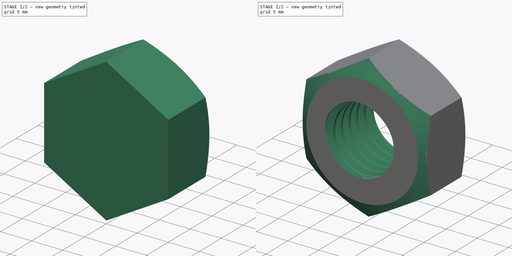
[diagram: build sequence overview — one tinted view per stage of 2, left to right]
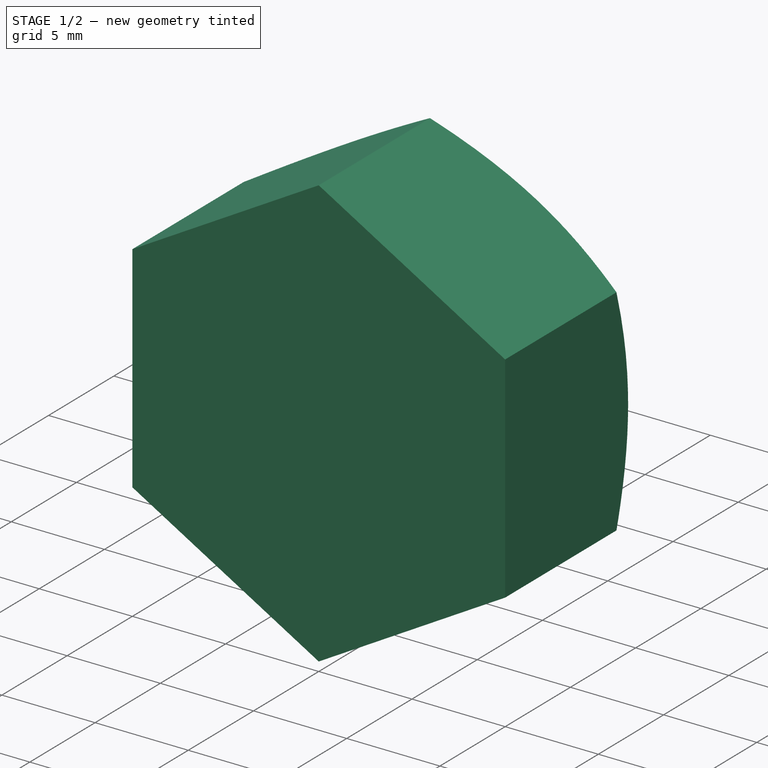
[diagram: stage 1 of 2 — iso view after this stage's code; geometry added in this stage tinted green]
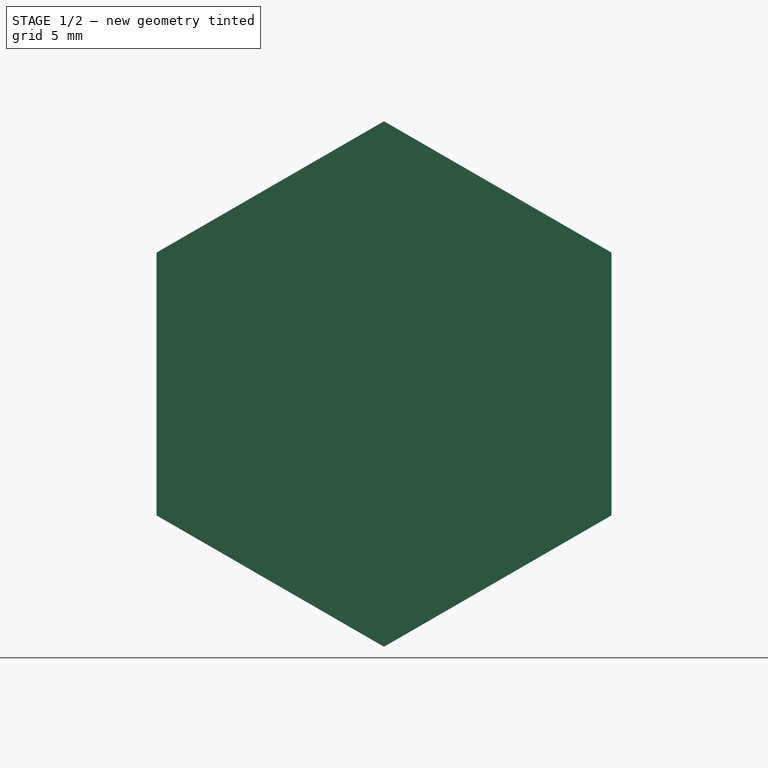
[diagram: stage 1 of 2 — front view after this stage's code; geometry added in this stage tinted green]
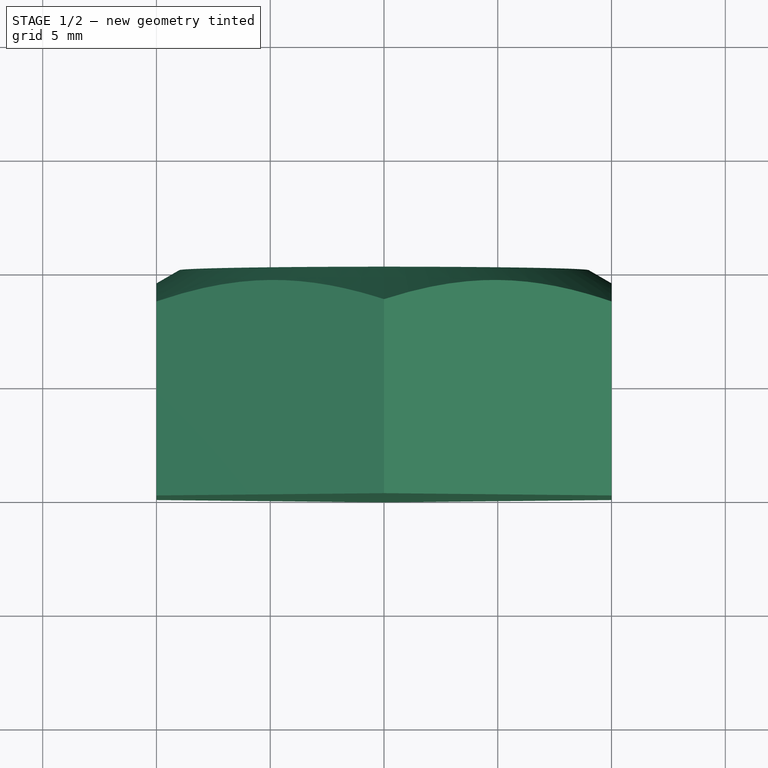
[diagram: stage 1 of 2 — top view after this stage's code; geometry added in this stage tinted green]
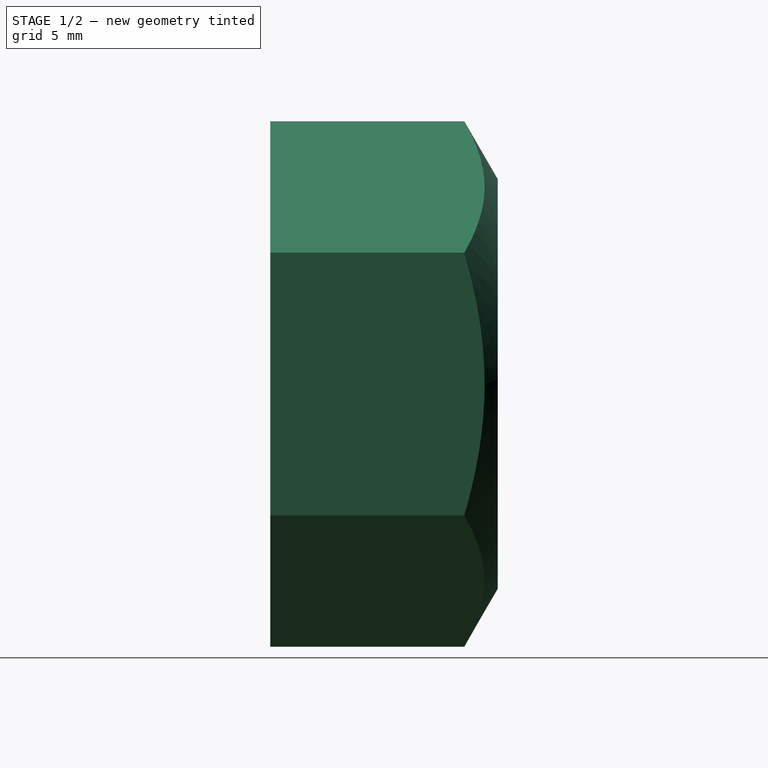
[diagram: stage 1 of 2 — right view after this stage's code; geometry added in this stage tinted green]
FCSTD DOCUMENT  (FreeCAD 0.20R29603 (Git))
Label: f2b_mutter
License: All rights reserved
LicenseURL: http://en.wikipedia.org/wiki/All_rights_reserved
objects: Sketcher::SketchObject×3, PartDesign::Pad×1, PartDesign::Groove×1, PartDesign::Mirrored×1, PartDesign::Hole×1, PartDesign::Body×1
note: 11 computed .brp shape members not serialized (recipe doc carries the construction recipe); baked Part::Feature solids carry a one-line shape summary decoded from their .brp

FEATURE [Sketcher::SketchObject] Sketch  label="sk_sechskant"
  FullyConstrained = true
  MapMode = 5
  Placement = pos=(0,0,0) rot=(1,0,0;1.5708rad)
  Support = -> [XZ_Plane]
  sketch-geometry (7):
    g0: LineSegment StartX=-10 StartY=-5.7735 StartZ=0 EndX=-10 EndY=5.7735 EndZ=0
    g1: LineSegment StartX=-10 StartY=5.7735 StartZ=0 EndX=0 EndY=11.547 EndZ=0
    g2: LineSegment StartX=0 StartY=11.547 StartZ=0 EndX=10 EndY=5.7735 EndZ=0
    g3: LineSegment StartX=10 StartY=5.7735 StartZ=0 EndX=10 EndY=-5.7735 EndZ=0
    g4: LineSegment StartX=10 StartY=-5.7735 StartZ=0 EndX=0 EndY=-11.547 EndZ=0
    g5: LineSegment StartX=0 StartY=-11.547 StartZ=0 EndX=-10 EndY=-5.7735 EndZ=0
    g6: Circle CenterX=0 CenterY=0 CenterZ=0 NormalX=0 NormalY=0 NormalZ=1 AngleXU=0 Radius=10
  constraints (20):
    c: Vertical(g0)
    c: Coincident(g1,g0)
    c: Coincident(g3,g2)
    c: Vertical(g3)
    c: Coincident(g5,g0)
    c: Equal(g0,g1)
    c: Equal(g1,g2)
    c: Equal(g2,g3)
    c: Equal(g3,g4)
    c: Equal(g4,g5)
    c: Coincident(g4,g3)
    c: Coincident(g4,g5)
    c: Coincident(g2,g1)
    c: Vertical(g1,g4)
    c: Vertical(g1,g-1)
    c: Distance(g0,g3) = 20
    c: Angle(g1,g2) = 2.0944
    c: Coincident(g6,g-1)
    c: Tangent(g6,g0)
    c: Tangent(g6,g1)
FEATURE [PartDesign::Pad] Pad  label="pad_sechskant"
  Direction = (0,-1,-2e-16)
  Length = 10
  Length2 = 10
  Midplane = true
  Placement = pos=(0,0,0) rot=(1,0,0;1.5708rad)
  Profile = -> Sketch
  ReferenceAxis = -> Sketch [N_Axis]
  Type = 0
  expr: Length = <<sk_fase>>.Constraints.dim_abstand * 2
FEATURE [Sketcher::SketchObject] Sketch001  label="sk_fase"
  FullyConstrained = true
  MapMode = 5
  Placement = pos=(0,0,0) rot=(0.57735,0.57735,0.57735;2.0944rad)
  Support = -> [YZ_Plane]
  sketch-geometry (3):
    g0: LineSegment StartX=2.6906 StartY=13 StartZ=0 EndX=5 EndY=9 EndZ=0
    g1: LineSegment StartX=5 StartY=9 StartZ=0 EndX=5 EndY=13 EndZ=0
    g2: LineSegment StartX=5 StartY=13 StartZ=0 EndX=2.6906 EndY=13 EndZ=0
  constraints (9):
    c: Coincident(g1,g0)
    c: Coincident(g2,g0)
    c: Horizontal(g2)
    c: Vertical(g1)
    c: Coincident(g2,g1)
    c: Distance(g0,g-1) = 9
    c: Angle(g1,g0) = 0.523599
    c: Distance(g1,g-1) = 13
    c: DistanceX(g-1,g0) = 5  'dim_abstand'
FEATURE [PartDesign::Groove] Groove  label="rev_fase"
  Angle = 360
  Axis = (1e-16,1,-1e-16)
  Base = (0,0,0)
  BaseFeature = -> Pad
  Placement = pos=(0,0,0) rot=(1,0,0;1.5708rad)
  Profile = -> Sketch001
  ReferenceAxis = -> Y_Axis
  Reversed = true
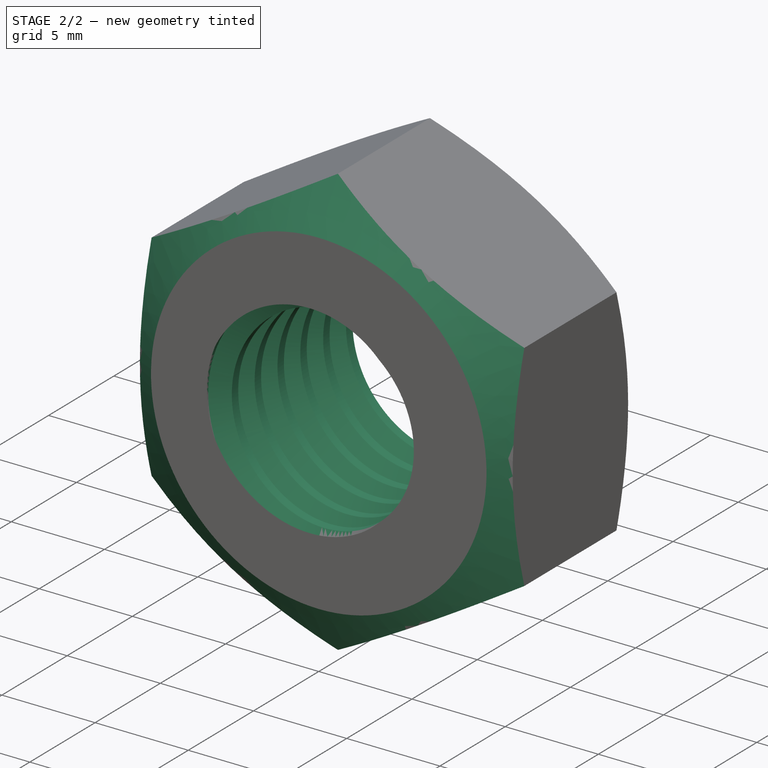
[diagram: stage 2 of 2 — iso view after this stage's code; geometry added in this stage tinted green]
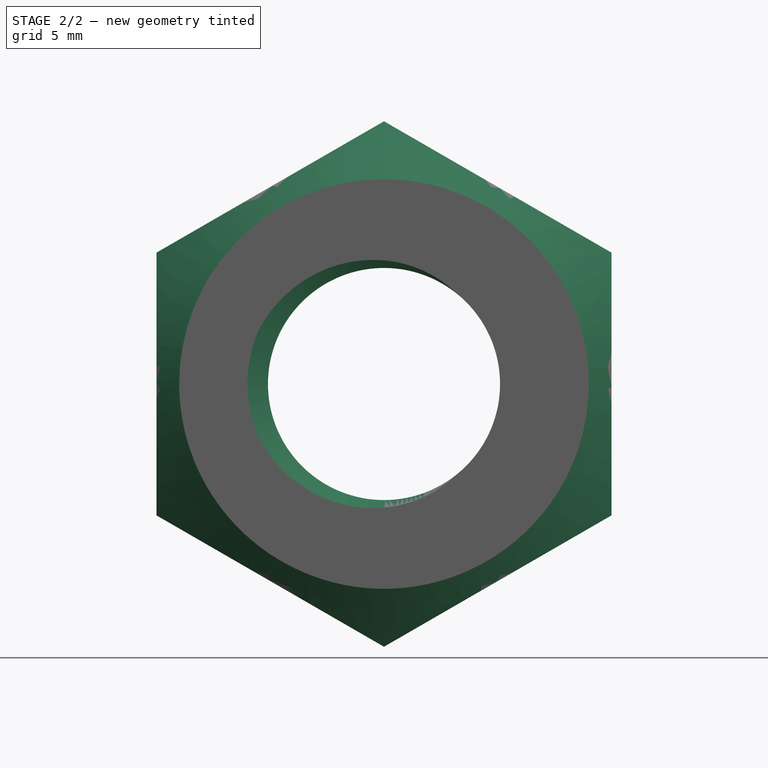
[diagram: stage 2 of 2 — front view after this stage's code; geometry added in this stage tinted green]
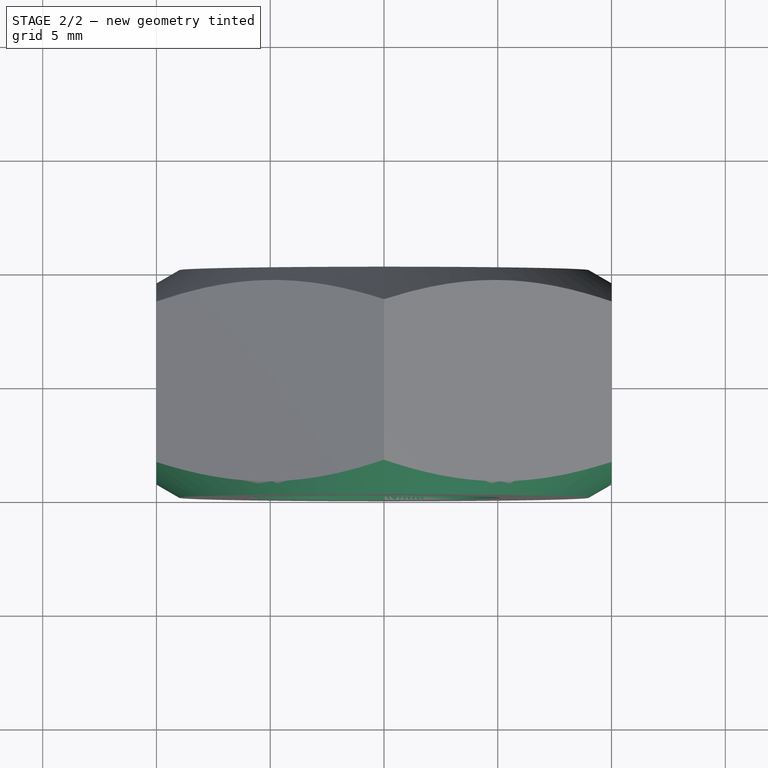
[diagram: stage 2 of 2 — top view after this stage's code; geometry added in this stage tinted green]
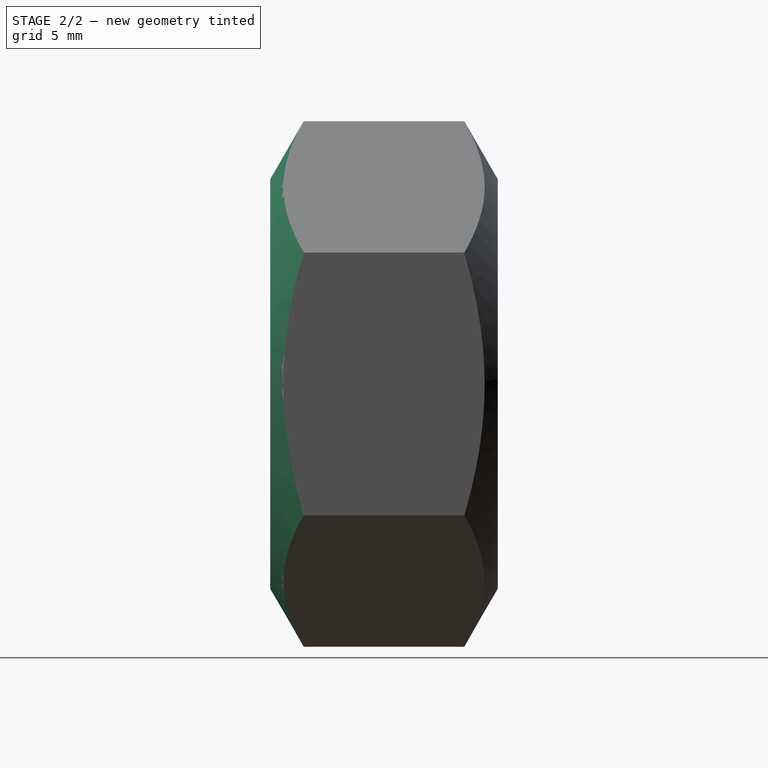
[diagram: stage 2 of 2 — right view after this stage's code; geometry added in this stage tinted green]
FEATURE [PartDesign::Mirrored] Mirrored
  BaseFeature = -> Groove
  MirrorPlane = -> XZ_Plane
  Originals = -> [Groove]
  Placement = pos=(0,0,0) rot=(1,0,0;1.5708rad)
FEATURE [Sketcher::SketchObject] Sketch002  label="sk_bohrung"
  AttachmentOffset = pos=(0,0,5) rot=(0,0,1;0rad)
  FullyConstrained = true
  MapMode = 5
  Placement = pos=(0,-5,-1.1e-15) rot=(1,0,0;1.5708rad)
  Support = -> [XZ_Plane]
  expr: .AttachmentOffset.Base.z = <<sk_fase>>.Constraints.dim_abstand
  sketch-geometry (1):
    g0: Circle CenterX=0 CenterY=0 CenterZ=0 NormalX=0 NormalY=0 NormalZ=1 AngleXU=0 Radius=6
  constraints (2):
    c: Coincident(g0,g-1)
    c: Diameter(g0) = 12
FEATURE [PartDesign::Hole] Hole
  BaseFeature = -> Mirrored
  CustomThreadClearance = 0
  Depth = 64.9339
  DepthType = 1
  Diameter = 10.2
  DrillForDepth = false
  DrillPoint = 1
  DrillPointAngle = 118
  HoleCutCountersinkAngle = 90
  HoleCutCustomValues = false
  HoleCutDepth = 0
  HoleCutDiameter = 6.1
  HoleCutType = 0
  ModelThread = true
  Placement = pos=(0,0,0) rot=(1,0,0;1.5708rad)
  Profile = -> Sketch002
  Tapered = false
  TaperedAngle = 90
  ThreadClass = 5
  ThreadDepth = 64.9339
  ThreadDepthType = 0
  ThreadDirection = 0
  ThreadFit = 0
  ThreadSize = 20
  ThreadType = 1
  Threaded = true
  UseCustomThreadClearance = false
FEATURE [PartDesign::Body] Body
  Group = -> [Sketch,Pad,Sketch001,Groove,Mirrored,Sketch002,Hole]
  Origin = -> Origin
  Tip = -> Hole
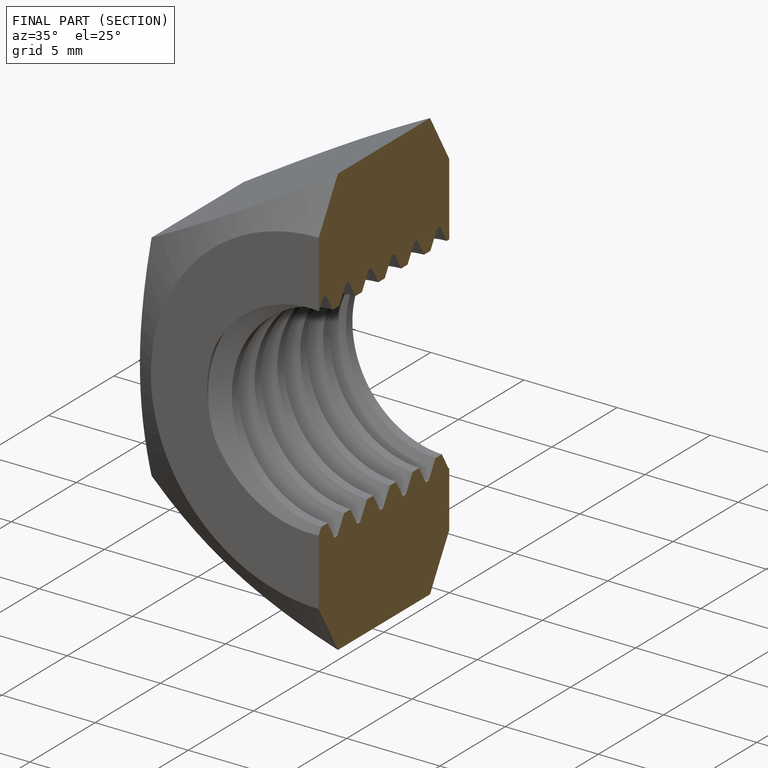
[diagram: finished part — half-section view (interior)]
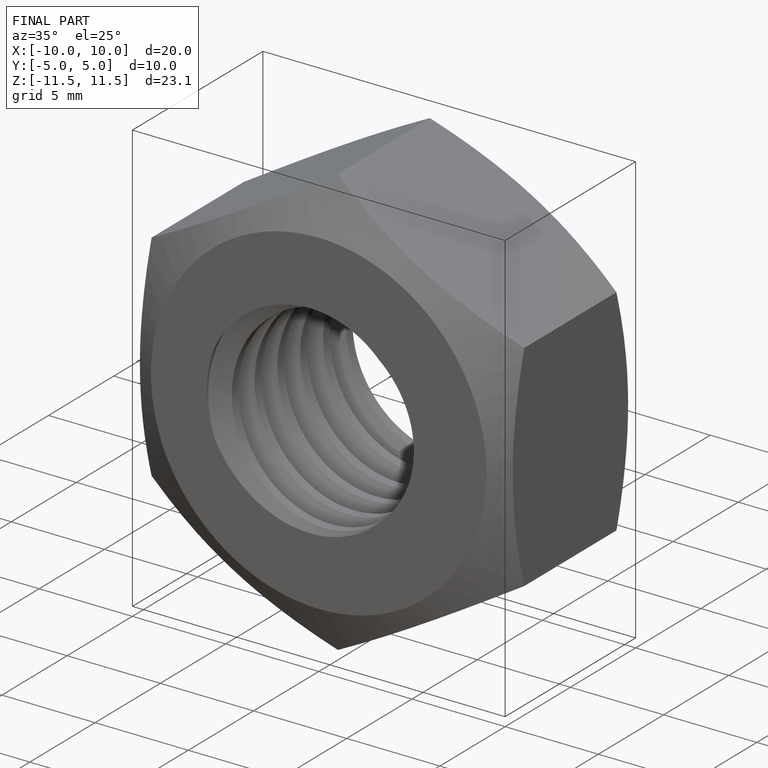
[diagram: finished part — iso view with bounding-box wireframe]
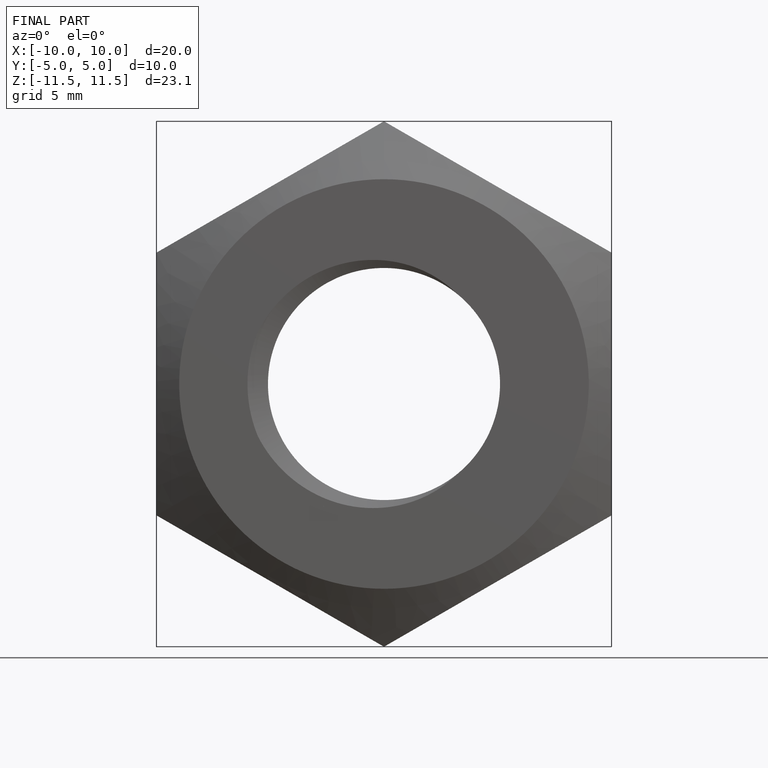
[diagram: finished part — front view with bounding-box wireframe]
